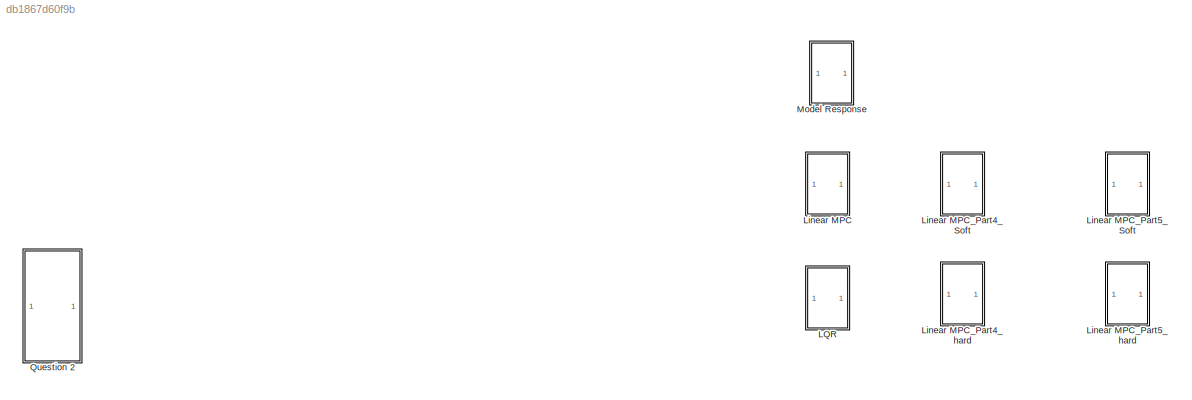
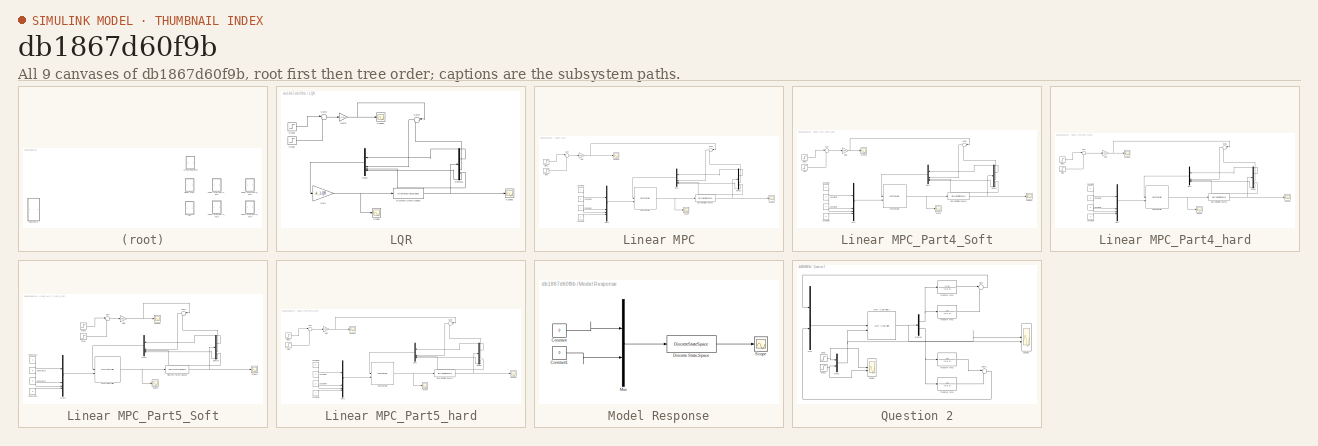
[diagram: thumbnail index - all 9 canvases of the model, root first then tree order]
MODEL slx_db1867d60f9b
KIND model
CONFIG AbsTol = auto
CONFIG EnableMultiTasking = off
CONFIG FixedStep = 0.1
CONFIG MaxStep = auto
CONFIG MinStep = auto
CONFIG RelTol = 1e-3
CONFIG SampleTimeConstraint = Unconstrained
CONFIG SolverName = FixedStepAuto
CONFIG StartTime = 0.0
CONFIG StopTime = 20
BLOCK [SubSystem] LQR
  Commented = on
BLOCK [Demux] LQR/Demux1
BLOCK [DiscreteStateSpace] LQR/Discrete State-Space2
  A = Ad
  B = Bd
  C = Cd
  D = Dd
  InitialCondition = [0,0.1,0,0]
  SampleTime = 0.1
BLOCK [Gain] LQR/Gain
  Gain = -k_LQR
  Multiplication = Matrix(K*u)
BLOCK [Gain] LQR/Gain1
  Gain = 0.05
BLOCK [Mux] LQR/Mux3
  DisplayOption = bar
BLOCK [Scope] LQR/Scope
  Floating = off
  NumInputPorts = 1
  ScopeSpecificationString = Simulink.scopes.TimeScopeBlockCfg('CurrentConfiguration', extmgr.ConfigurationSet(extmgr.Configuration('Core','General UI',true),extmgr.Configuration('Core','Source UI',true),extmgr.Configuration('Sources','WiredSimulink',true),extmgr.Configuration('Visuals','Time Domain',true,'SerializedDisplays',{struct('MinYLimReal','-5.09691','MaxYLimReal','7.30792','YLabelReal','','MinYLimMag','0.00000','MaxY...<+1364ch>
BLOCK [Scope] LQR/Scope3
  Floating = off
  NumInputPorts = 1
  ScopeSpecificationString = Simulink.scopes.TimeScopeBlockCfg('CurrentConfiguration', extmgr.ConfigurationSet(extmgr.Configuration('Core','General UI',true),extmgr.Configuration('Core','Source UI',true),extmgr.Configuration('Sources','WiredSimulink',true,'DataLoggingVariableName','ScopeData1'),extmgr.Configuration('Visuals','Time Domain',true,'SerializedDisplays',{struct('MinYLimReal','-9.49585','MaxYLimReal','12.90608','YLa...<+1653ch>
BLOCK [Scope] LQR/Scope4
  Floating = off
  NumInputPorts = 1
  ScopeSpecificationString = Simulink.scopes.TimeScopeBlockCfg('CurrentConfiguration', extmgr.ConfigurationSet(extmgr.Configuration('Core','General UI',true),extmgr.Configuration('Core','Source UI',true),extmgr.Configuration('Sources','WiredSimulink',true,'DataLoggingVariableName','ScopeData2'),extmgr.Configuration('Visuals','Time Domain',true,'SerializedDisplays',{struct('MinYLimReal','-0.125','MaxYLimReal','1.125','YLabelRe...<+1379ch>  <repeated x5 — deduplicated; at blocks: Scope4, Scope2>
BLOCK [Step] LQR/Step2
  SampleTime = 0
  Time = 5
BLOCK [Step] LQR/Step3
  SampleTime = 0
  Time = 4
BLOCK [Sum] LQR/Sum2
  Inputs = |+-
BLOCK [Sum] LQR/Sum3
  Inputs = |++
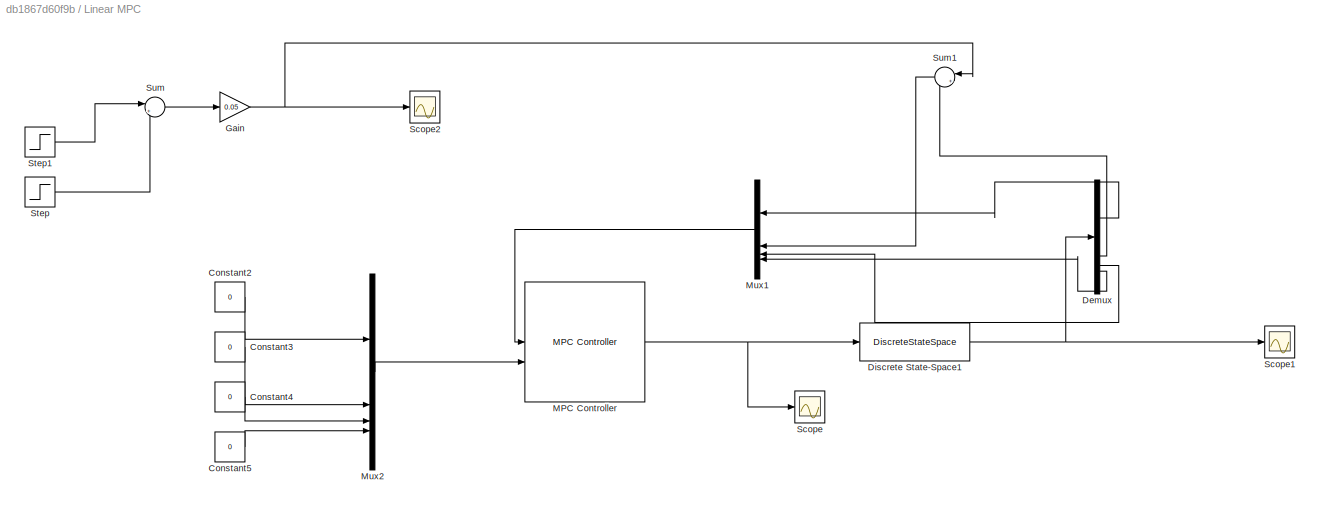
BLOCK [SubSystem] Linear MPC
  Commented = on
BLOCK [Constant] Linear MPC/Constant2
  Value = 0
BLOCK [Constant] Linear MPC/Constant3
  Value = 0
BLOCK [Constant] Linear MPC/Constant4
  Value = 0
BLOCK [Constant] Linear MPC/Constant5
  Value = 0
BLOCK [Demux] Linear MPC/Demux
BLOCK [DiscreteStateSpace] Linear MPC/Discrete State-Space1
  A = Ad
  B = Bd
  C = Cd
  D = Dd
  InitialCondition = [0,0.1,0,0]
  SampleTime = 0.1
BLOCK [Gain] Linear MPC/Gain
  Gain = 0.05
BLOCK [Reference] Linear MPC/MPC Controller  REF=mpclib/MPC Controller  (lib defined in mdl_ae329e0e0455)
  SCDEnableBlockLinearizationSpecification = on
  SourceBlock = mpclib/MPC Controller
  SourceType = MPC
BLOCK [Mux] Linear MPC/Mux1
  DisplayOption = bar
BLOCK [Mux] Linear MPC/Mux2
  DisplayOption = bar
BLOCK [Scope] Linear MPC/Scope
  Floating = off
  NumInputPorts = 1
  ScopeSpecificationString = Simulink.scopes.TimeScopeBlockCfg('CurrentConfiguration', extmgr.ConfigurationSet(extmgr.Configuration('Core','General UI',true),extmgr.Configuration('Core','Source UI',true),extmgr.Configuration('Sources','WiredSimulink',true),extmgr.Configuration('Visuals','Time Domain',true,'SerializedDisplays',{struct('MinYLimReal','-10.59758','MaxYLimReal','18.30706','YLabelReal','','MinYLimMag','0.00000','Ma...<+1433ch>
BLOCK [Scope] Linear MPC/Scope1
  Floating = off
  NumInputPorts = 1
  ScopeSpecificationString = Simulink.scopes.TimeScopeBlockCfg('CurrentConfiguration', extmgr.ConfigurationSet(extmgr.Configuration('Core','General UI',true),extmgr.Configuration('Core','Source UI',true),extmgr.Configuration('Sources','WiredSimulink',true,'DataLoggingVariableName','ScopeData1'),extmgr.Configuration('Visuals','Time Domain',true,'SerializedDisplays',{struct('MinYLimReal','-19.03767','MaxYLimReal','32.38824','YL...<+1564ch>
BLOCK [Scope] Linear MPC/Scope2
  Floating = off
  NumInputPorts = 1
  ScopeSpecificationString = Simulink.scopes.TimeScopeBlockCfg('CurrentConfiguration', extmgr.ConfigurationSet(extmgr.Configuration('Core','General UI',true),extmgr.Configuration('Core','Source UI',true),extmgr.Configuration('Sources','WiredSimulink',true,'DataLoggingVariableName','ScopeData2'),extmgr.Configuration('Visuals','Time Domain',true,'SerializedDisplays',{struct('MinYLimReal','-0.00625','MaxYLimReal','0.05625','YLab...<+1392ch>
BLOCK [Step] Linear MPC/Step
  SampleTime = 0
  Time = 5
BLOCK [Step] Linear MPC/Step1
  SampleTime = 0
  Time = 4
BLOCK [Sum] Linear MPC/Sum
  Inputs = |+-
BLOCK [Sum] Linear MPC/Sum1
  Inputs = |++
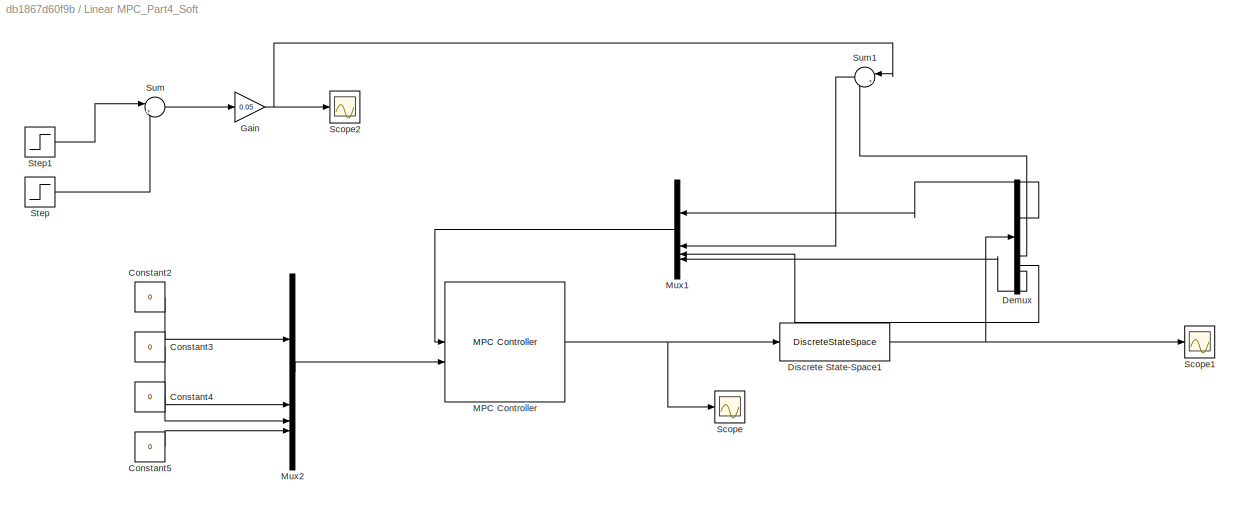
BLOCK [SubSystem] Linear MPC_Part4_Soft
  Commented = on
BLOCK [Constant] Linear MPC_Part4_Soft/Constant2
  Value = 0
BLOCK [Constant] Linear MPC_Part4_Soft/Constant3
  Value = 0
BLOCK [Constant] Linear MPC_Part4_Soft/Constant4
  Value = 0
BLOCK [Constant] Linear MPC_Part4_Soft/Constant5
  Value = 0
BLOCK [Demux] Linear MPC_Part4_Soft/Demux
BLOCK [DiscreteStateSpace] Linear MPC_Part4_Soft/Discrete State-Space1
  A = Ad
  B = Bd
  C = Cd
  D = Dd
  InitialCondition = [0,0.1,0,0]
  SampleTime = 0.1
BLOCK [Gain] Linear MPC_Part4_Soft/Gain
  Gain = 0.05
BLOCK [Reference] Linear MPC_Part4_Soft/MPC Controller  REF=mpclib/MPC Controller  (lib defined in mdl_ae329e0e0455)
  SCDEnableBlockLinearizationSpecification = on
  SourceBlock = mpclib/MPC Controller
  SourceType = MPC
BLOCK [Mux] Linear MPC_Part4_Soft/Mux1
  DisplayOption = bar
BLOCK [Mux] Linear MPC_Part4_Soft/Mux2
  DisplayOption = bar
BLOCK [Scope] Linear MPC_Part4_Soft/Scope
  Floating = off
  NumInputPorts = 1
  ScopeSpecificationString = Simulink.scopes.TimeScopeBlockCfg('CurrentConfiguration', extmgr.ConfigurationSet(extmgr.Configuration('Core','General UI',true),extmgr.Configuration('Core','Source UI',true),extmgr.Configuration('Sources','WiredSimulink',true),extmgr.Configuration('Visuals','Time Domain',true,'SerializedDisplays',{struct('MinYLimReal','-4.06784','MaxYLimReal','9.88026','YLabelReal','','MinYLimMag','0.00000','MaxY...<+1382ch>
BLOCK [Scope] Linear MPC_Part4_Soft/Scope1
  Floating = off
  NumInputPorts = 1
  ScopeSpecificationString = Simulink.scopes.TimeScopeBlockCfg('CurrentConfiguration', extmgr.ConfigurationSet(extmgr.Configuration('Core','General UI',true),extmgr.Configuration('Core','Source UI',true),extmgr.Configuration('Sources','WiredSimulink',true,'DataLoggingVariableName','ScopeData1'),extmgr.Configuration('Visuals','Time Domain',true,'SerializedDisplays',{struct('MinYLimReal','-23.2834','MaxYLimReal','27.85301','YLa...<+1537ch>  <repeated x3 — deduplicated; at blocks: Scope1>
BLOCK [Scope] Linear MPC_Part4_Soft/Scope2
  Floating = off
  NumInputPorts = 1
BLOCK [Step] Linear MPC_Part4_Soft/Step
  SampleTime = 0
  Time = 5
BLOCK [Step] Linear MPC_Part4_Soft/Step1
  SampleTime = 0
  Time = 4
BLOCK [Sum] Linear MPC_Part4_Soft/Sum
  Inputs = |+-
BLOCK [Sum] Linear MPC_Part4_Soft/Sum1
  Inputs = |++
BLOCK [SubSystem] Linear MPC_Part4_hard
  Commented = on
BLOCK [Constant] Linear MPC_Part4_hard/Constant2
  Value = 0
BLOCK [Constant] Linear MPC_Part4_hard/Constant3
  Value = 0
BLOCK [Constant] Linear MPC_Part4_hard/Constant4
  Value = 0
BLOCK [Constant] Linear MPC_Part4_hard/Constant5
  Value = 0
BLOCK [Demux] Linear MPC_Part4_hard/Demux
BLOCK [DiscreteStateSpace] Linear MPC_Part4_hard/Discrete State-Space1
  A = Ad
  B = Bd
  C = Cd
  D = Dd
  InitialCondition = [0,0.1,0,0]
  SampleTime = 0.1
BLOCK [Gain] Linear MPC_Part4_hard/Gain
  Gain = 0.05
BLOCK [Reference] Linear MPC_Part4_hard/MPC Controller  REF=mpclib/MPC Controller  (lib defined in mdl_ae329e0e0455)
  SCDEnableBlockLinearizationSpecification = on
  SourceBlock = mpclib/MPC Controller
  SourceType = MPC
BLOCK [Mux] Linear MPC_Part4_hard/Mux1
  DisplayOption = bar
BLOCK [Mux] Linear MPC_Part4_hard/Mux2
  DisplayOption = bar
BLOCK [Scope] Linear MPC_Part4_hard/Scope
  Floating = off
  NumInputPorts = 1
  ScopeSpecificationString = Simulink.scopes.TimeScopeBlockCfg('CurrentConfiguration', extmgr.ConfigurationSet(extmgr.Configuration('Core','General UI',true),extmgr.Configuration('Core','Source UI',true),extmgr.Configuration('Sources','WiredSimulink',true),extmgr.Configuration('Visuals','Time Domain',true,'SerializedDisplays',{struct('MinYLimReal','-21.62766','MaxYLimReal','11.79837','YLabelReal','','MinYLimMag','0.00000','Ma...<+1390ch>
BLOCK [Scope] Linear MPC_Part4_hard/Scope1
  Floating = off
  NumInputPorts = 1
  ScopeSpecificationString = Simulink.scopes.TimeScopeBlockCfg('CurrentConfiguration', extmgr.ConfigurationSet(extmgr.Configuration('Core','General UI',true),extmgr.Configuration('Core','Source UI',true),extmgr.Configuration('Sources','WiredSimulink',true,'DataLoggingVariableName','ScopeData1'),extmgr.Configuration('Visuals','Time Domain',true,'SerializedDisplays',{struct('MinYLimReal','-38.19769','MaxYLimReal','21.28834','YL...<+1630ch>
BLOCK [Scope] Linear MPC_Part4_hard/Scope2
  Floating = off
  NumInputPorts = 1
BLOCK [Step] Linear MPC_Part4_hard/Step
  SampleTime = 0
  Time = 5
BLOCK [Step] Linear MPC_Part4_hard/Step1
  SampleTime = 0
  Time = 4
BLOCK [Sum] Linear MPC_Part4_hard/Sum
  Inputs = |+-
BLOCK [Sum] Linear MPC_Part4_hard/Sum1
  Inputs = |++
BLOCK [SubSystem] Linear MPC_Part5_Soft
  Commented = on
BLOCK [Constant] Linear MPC_Part5_Soft/Constant2
  Value = 0
BLOCK [Constant] Linear MPC_Part5_Soft/Constant3
  Value = 0
BLOCK [Constant] Linear MPC_Part5_Soft/Constant4
  Value = 0
BLOCK [Constant] Linear MPC_Part5_Soft/Constant5
  Value = 0
BLOCK [Demux] Linear MPC_Part5_Soft/Demux
BLOCK [DiscreteStateSpace] Linear MPC_Part5_Soft/Discrete State-Space1
  A = Ad
  B = Bd
  C = Cd
  D = Dd
  InitialCondition = [0,0.1,0,0]
  SampleTime = 0.1
BLOCK [Gain] Linear MPC_Part5_Soft/Gain
  Gain = 0.05
BLOCK [Reference] Linear MPC_Part5_Soft/MPC Controller  REF=mpclib/MPC Controller  (lib defined in mdl_ae329e0e0455)
  SCDEnableBlockLinearizationSpecification = on
  SourceBlock = mpclib/MPC Controller
  SourceType = MPC
BLOCK [Mux] Linear MPC_Part5_Soft/Mux1
  DisplayOption = bar
BLOCK [Mux] Linear MPC_Part5_Soft/Mux2
  DisplayOption = bar
BLOCK [Scope] Linear MPC_Part5_Soft/Scope
  Floating = off
  NumInputPorts = 1
  ScopeSpecificationString = Simulink.scopes.TimeScopeBlockCfg('CurrentConfiguration', extmgr.ConfigurationSet(extmgr.Configuration('Core','General UI',true),extmgr.Configuration('Core','Source UI',true),extmgr.Configuration('Sources','WiredSimulink',true),extmgr.Configuration('Visuals','Time Domain',true,'SerializedDisplays',{struct('MinYLimReal','-4.08969','MaxYLimReal','9.60061','YLabelReal','','MinYLimMag','0.00000','MaxY...<+1384ch>
BLOCK [Scope] Linear MPC_Part5_Soft/Scope1
  Floating = off
  NumInputPorts = 1
BLOCK [Scope] Linear MPC_Part5_Soft/Scope2
  Floating = off
  NumInputPorts = 1
BLOCK [Step] Linear MPC_Part5_Soft/Step
  SampleTime = 0
  Time = 5
BLOCK [Step] Linear MPC_Part5_Soft/Step1
  SampleTime = 0
  Time = 4
BLOCK [Sum] Linear MPC_Part5_Soft/Sum
  Inputs = |+-
BLOCK [Sum] Linear MPC_Part5_Soft/Sum1
  Inputs = |++
BLOCK [SubSystem] Linear MPC_Part5_hard
  Commented = on
BLOCK [Constant] Linear MPC_Part5_hard/Constant2
  Value = 0
BLOCK [Constant] Linear MPC_Part5_hard/Constant3
  Value = 0
BLOCK [Constant] Linear MPC_Part5_hard/Constant4
  Value = 0
BLOCK [Constant] Linear MPC_Part5_hard/Constant5
  Value = 0
BLOCK [Demux] Linear MPC_Part5_hard/Demux
BLOCK [DiscreteStateSpace] Linear MPC_Part5_hard/Discrete State-Space1
  A = Ad
  B = Bd
  C = Cd
  D = Dd
  InitialCondition = [0,0.1,0,0]
  SampleTime = 0.1
BLOCK [Gain] Linear MPC_Part5_hard/Gain
  Gain = 0.05
BLOCK [Reference] Linear MPC_Part5_hard/MPC Controller  REF=mpclib/MPC Controller  (lib defined in mdl_ae329e0e0455)
  SCDEnableBlockLinearizationSpecification = on
  SourceBlock = mpclib/MPC Controller
  SourceType = MPC
BLOCK [Mux] Linear MPC_Part5_hard/Mux1
  DisplayOption = bar
BLOCK [Mux] Linear MPC_Part5_hard/Mux2
  DisplayOption = bar
BLOCK [Scope] Linear MPC_Part5_hard/Scope
  Floating = off
  NumInputPorts = 1
  ScopeSpecificationString = Simulink.scopes.TimeScopeBlockCfg('CurrentConfiguration', extmgr.ConfigurationSet(extmgr.Configuration('Core','General UI',true),extmgr.Configuration('Core','Source UI',true),extmgr.Configuration('Sources','WiredSimulink',true),extmgr.Configuration('Visuals','Time Domain',true,'SerializedDisplays',{struct('MinYLimReal','-34.14432','MaxYLimReal','13.91444','YLabelReal','','MinYLimMag','0.00000','Ma...<+1390ch>
BLOCK [Scope] Linear MPC_Part5_hard/Scope1
  Floating = off
  NumInputPorts = 1
BLOCK [Scope] Linear MPC_Part5_hard/Scope2
  Floating = off
  NumInputPorts = 1
BLOCK [Step] Linear MPC_Part5_hard/Step
  SampleTime = 0
  Time = 5
BLOCK [Step] Linear MPC_Part5_hard/Step1
  SampleTime = 0
  Time = 4
BLOCK [Sum] Linear MPC_Part5_hard/Sum
  Inputs = |+-
BLOCK [Sum] Linear MPC_Part5_hard/Sum1
  Inputs = |++
BLOCK [SubSystem] Model Response
  Commented = on
BLOCK [Constant] Model Response/Constant
  Value = 0
BLOCK [Constant] Model Response/Constant1
  Value = 0
BLOCK [DiscreteStateSpace] Model Response/Discrete State-Space
  A = Ad
  B = Bd
  C = Cd
  D = Dd
  InitialCondition = [0,0.1,0,0]
  SampleTime = 0.1
BLOCK [Mux] Model Response/Mux
  DisplayOption = bar
  Inputs = 2
BLOCK [Scope] Model Response/Scope
  Floating = off
  NumInputPorts = 1
  ScopeSpecificationString = Simulink.scopes.TimeScopeBlockCfg('CurrentConfiguration', extmgr.ConfigurationSet(extmgr.Configuration('Core','General UI',true),extmgr.Configuration('Core','Source UI',true),extmgr.Configuration('Sources','WiredSimulink',true),extmgr.Configuration('Visuals','Time Domain',true,'SerializedDisplays',{struct('MinYLimReal','-13217947194841555614337859584.00000','MaxYLimReal','1189615247535740203202500...<+1730ch>
BLOCK [SubSystem] Question 2
BLOCK [Demux] Question 2/Demux
  Outputs = 2
BLOCK [Reference] Question 2/MPC Controller1  REF=mpclib/MPC Controller  (lib defined in mdl_ae329e0e0455)
  SCDEnableBlockLinearizationSpecification = on
  SourceBlock = mpclib/MPC Controller
  SourceType = MPC
BLOCK [Mux] Question 2/Mux
  DisplayOption = bar
  Inputs = 2
BLOCK [Mux] Question 2/Mux1
  DisplayOption = bar
  Inputs = 2
BLOCK [Scope] Question 2/Scope
  Floating = off
  NumInputPorts = 2
  ScopeSpecificationString = Simulink.scopes.TimeScopeBlockCfg('CurrentConfiguration', extmgr.ConfigurationSet(extmgr.Configuration('Core','General UI',true),extmgr.Configuration('Core','Source UI',true),extmgr.Configuration('Sources','WiredSimulink',true,'DataLoggingVariableName','ScopeData1'),extmgr.Configuration('Visuals','Time Domain',true,'SerializedDisplays',{struct('MinYLimReal','-26.25','MaxYLimReal','36.25','YLabelRe...<+1359ch>
BLOCK [Scope] Question 2/Scope1
  Floating = off
  NumInputPorts = 2
  ScopeSpecificationString = Simulink.scopes.TimeScopeBlockCfg('CurrentConfiguration', extmgr.ConfigurationSet(extmgr.Configuration('Core','General UI',true),extmgr.Configuration('Core','Source UI',true),extmgr.Configuration('Sources','WiredSimulink',true,'DataLoggingVariableName','ScopeData2'),extmgr.Configuration('Visuals','Time Domain',true,'SerializedDisplays',{struct('MinYLimReal','-26.25','MaxYLimReal','36.25','YLabelRe...<+1428ch>
BLOCK [Step] Question 2/Step
  After = 15
  Before = -10
  SampleTime = 0
  Time = 10
BLOCK [Step] Question 2/Step1
  After = 30
  Before = -20
  SampleTime = 0
  Time = 5
BLOCK [Sum] Question 2/Sum
  Inputs = |++
BLOCK [Sum] Question 2/Sum1
  Inputs = |++
BLOCK [TransferFcn] Question 2/Transfer Fcn1
  Denominator = [0.4 1]
  Numerator = [4]
BLOCK [TransferFcn] Question 2/Transfer Fcn2
  Denominator = [0.6 1]
  Numerator = [2]
BLOCK [TransferFcn] Question 2/Transfer Fcn3
  Denominator = [0.5 1]
  Numerator = [3]
BLOCK [TransferFcn] Question 2/Transfer Fcn4
  Denominator = [0.8 1]
  Numerator = [1.5]
LINE LQR/Demux1:1 -> LQR/Mux3:1
LINE LQR/Demux1:2 -> LQR/Sum3:2
LINE LQR/Demux1:3 -> LQR/Mux3:3
LINE LQR/Demux1:4 -> LQR/Mux3:4
NET LQR/Discrete State-Space2:1 -> LQR/Demux1:1, LQR/Scope3:1
NET LQR/Gain1:1 -> LQR/Scope4:1, LQR/Sum3:1
NET LQR/Gain:1 -> LQR/Discrete State-Space2:1, LQR/Scope:1
LINE LQR/Mux3:1 -> LQR/Gain:1
LINE LQR/Step2:1 -> LQR/Sum2:2
LINE LQR/Step3:1 -> LQR/Sum2:1
LINE LQR/Sum2:1 -> LQR/Gain1:1
LINE LQR/Sum3:1 -> LQR/Mux3:2
LINE Linear MPC/Constant2:1 -> Linear MPC/Mux2:1
LINE Linear MPC/Constant3:1 -> Linear MPC/Mux2:2
LINE Linear MPC/Constant4:1 -> Linear MPC/Mux2:3
LINE Linear MPC/Constant5:1 -> Linear MPC/Mux2:4
LINE Linear MPC/Demux:1 -> Linear MPC/Mux1:1
LINE Linear MPC/Demux:2 -> Linear MPC/Sum1:2
LINE Linear MPC/Demux:3 -> Linear MPC/Mux1:3
LINE Linear MPC/Demux:4 -> Linear MPC/Mux1:4
NET Linear MPC/Discrete State-Space1:1 -> Linear MPC/Demux:1, Linear MPC/Scope1:1
NET Linear MPC/Gain:1 -> Linear MPC/Scope2:1, Linear MPC/Sum1:1
NET Linear MPC/MPC Controller:1 -> Linear MPC/Discrete State-Space1:1, Linear MPC/Scope:1
LINE Linear MPC/Mux1:1 -> Linear MPC/MPC Controller:1
LINE Linear MPC/Mux2:1 -> Linear MPC/MPC Controller:2
LINE Linear MPC/Step1:1 -> Linear MPC/Sum:1
LINE Linear MPC/Step:1 -> Linear MPC/Sum:2
LINE Linear MPC/Sum1:1 -> Linear MPC/Mux1:2
LINE Linear MPC/Sum:1 -> Linear MPC/Gain:1
LINE Linear MPC_Part4_Soft/Constant2:1 -> Linear MPC_Part4_Soft/Mux2:1
LINE Linear MPC_Part4_Soft/Constant3:1 -> Linear MPC_Part4_Soft/Mux2:2
LINE Linear MPC_Part4_Soft/Constant4:1 -> Linear MPC_Part4_Soft/Mux2:3
LINE Linear MPC_Part4_Soft/Constant5:1 -> Linear MPC_Part4_Soft/Mux2:4
LINE Linear MPC_Part4_Soft/Demux:1 -> Linear MPC_Part4_Soft/Mux1:1
LINE Linear MPC_Part4_Soft/Demux:2 -> Linear MPC_Part4_Soft/Sum1:2
LINE Linear MPC_Part4_Soft/Demux:3 -> Linear MPC_Part4_Soft/Mux1:3
LINE Linear MPC_Part4_Soft/Demux:4 -> Linear MPC_Part4_Soft/Mux1:4
NET Linear MPC_Part4_Soft/Discrete State-Space1:1 -> Linear MPC_Part4_Soft/Demux:1, Linear MPC_Part4_Soft/Scope1:1
NET Linear MPC_Part4_Soft/Gain:1 -> Linear MPC_Part4_Soft/Scope2:1, Linear MPC_Part4_Soft/Sum1:1
NET Linear MPC_Part4_Soft/MPC Controller:1 -> Linear MPC_Part4_Soft/Discrete State-Space1:1, Linear MPC_Part4_Soft/Scope:1
LINE Linear MPC_Part4_Soft/Mux1:1 -> Linear MPC_Part4_Soft/MPC Controller:1
LINE Linear MPC_Part4_Soft/Mux2:1 -> Linear MPC_Part4_Soft/MPC Controller:2
LINE Linear MPC_Part4_Soft/Step1:1 -> Linear MPC_Part4_Soft/Sum:1
LINE Linear MPC_Part4_Soft/Step:1 -> Linear MPC_Part4_Soft/Sum:2
LINE Linear MPC_Part4_Soft/Sum1:1 -> Linear MPC_Part4_Soft/Mux1:2
LINE Linear MPC_Part4_Soft/Sum:1 -> Linear MPC_Part4_Soft/Gain:1
LINE Linear MPC_Part4_hard/Constant2:1 -> Linear MPC_Part4_hard/Mux2:1
LINE Linear MPC_Part4_hard/Constant3:1 -> Linear MPC_Part4_hard/Mux2:2
LINE Linear MPC_Part4_hard/Constant4:1 -> Linear MPC_Part4_hard/Mux2:3
LINE Linear MPC_Part4_hard/Constant5:1 -> Linear MPC_Part4_hard/Mux2:4
LINE Linear MPC_Part4_hard/Demux:1 -> Linear MPC_Part4_hard/Mux1:1
LINE Linear MPC_Part4_hard/Demux:2 -> Linear MPC_Part4_hard/Sum1:2
LINE Linear MPC_Part4_hard/Demux:3 -> Linear MPC_Part4_hard/Mux1:3
LINE Linear MPC_Part4_hard/Demux:4 -> Linear MPC_Part4_hard/Mux1:4
NET Linear MPC_Part4_hard/Discrete State-Space1:1 -> Linear MPC_Part4_hard/Demux:1, Linear MPC_Part4_hard/Scope1:1
NET Linear MPC_Part4_hard/Gain:1 -> Linear MPC_Part4_hard/Scope2:1, Linear MPC_Part4_hard/Sum1:1
NET Linear MPC_Part4_hard/MPC Controller:1 -> Linear MPC_Part4_hard/Discrete State-Space1:1, Linear MPC_Part4_hard/Scope:1
LINE Linear MPC_Part4_hard/Mux1:1 -> Linear MPC_Part4_hard/MPC Controller:1
LINE Linear MPC_Part4_hard/Mux2:1 -> Linear MPC_Part4_hard/MPC Controller:2
LINE Linear MPC_Part4_hard/Step1:1 -> Linear MPC_Part4_hard/Sum:1
LINE Linear MPC_Part4_hard/Step:1 -> Linear MPC_Part4_hard/Sum:2
LINE Linear MPC_Part4_hard/Sum1:1 -> Linear MPC_Part4_hard/Mux1:2
LINE Linear MPC_Part4_hard/Sum:1 -> Linear MPC_Part4_hard/Gain:1
LINE Linear MPC_Part5_Soft/Constant2:1 -> Linear MPC_Part5_Soft/Mux2:1
LINE Linear MPC_Part5_Soft/Constant3:1 -> Linear MPC_Part5_Soft/Mux2:2
LINE Linear MPC_Part5_Soft/Constant4:1 -> Linear MPC_Part5_Soft/Mux2:3
LINE Linear MPC_Part5_Soft/Constant5:1 -> Linear MPC_Part5_Soft/Mux2:4
LINE Linear MPC_Part5_Soft/Demux:1 -> Linear MPC_Part5_Soft/Mux1:1
LINE Linear MPC_Part5_Soft/Demux:2 -> Linear MPC_Part5_Soft/Sum1:2
LINE Linear MPC_Part5_Soft/Demux:3 -> Linear MPC_Part5_Soft/Mux1:3
LINE Linear MPC_Part5_Soft/Demux:4 -> Linear MPC_Part5_Soft/Mux1:4
NET Linear MPC_Part5_Soft/Discrete State-Space1:1 -> Linear MPC_Part5_Soft/Demux:1, Linear MPC_Part5_Soft/Scope1:1
NET Linear MPC_Part5_Soft/Gain:1 -> Linear MPC_Part5_Soft/Scope2:1, Linear MPC_Part5_Soft/Sum1:1
NET Linear MPC_Part5_Soft/MPC Controller:1 -> Linear MPC_Part5_Soft/Discrete State-Space1:1, Linear MPC_Part5_Soft/Scope:1
LINE Linear MPC_Part5_Soft/Mux1:1 -> Linear MPC_Part5_Soft/MPC Controller:1
LINE Linear MPC_Part5_Soft/Mux2:1 -> Linear MPC_Part5_Soft/MPC Controller:2
LINE Linear MPC_Part5_Soft/Step1:1 -> Linear MPC_Part5_Soft/Sum:1
LINE Linear MPC_Part5_Soft/Step:1 -> Linear MPC_Part5_Soft/Sum:2
LINE Linear MPC_Part5_Soft/Sum1:1 -> Linear MPC_Part5_Soft/Mux1:2
LINE Linear MPC_Part5_Soft/Sum:1 -> Linear MPC_Part5_Soft/Gain:1
LINE Linear MPC_Part5_hard/Constant2:1 -> Linear MPC_Part5_hard/Mux2:1
LINE Linear MPC_Part5_hard/Constant3:1 -> Linear MPC_Part5_hard/Mux2:2
LINE Linear MPC_Part5_hard/Constant4:1 -> Linear MPC_Part5_hard/Mux2:3
LINE Linear MPC_Part5_hard/Constant5:1 -> Linear MPC_Part5_hard/Mux2:4
LINE Linear MPC_Part5_hard/Demux:1 -> Linear MPC_Part5_hard/Mux1:1
LINE Linear MPC_Part5_hard/Demux:2 -> Linear MPC_Part5_hard/Sum1:2
LINE Linear MPC_Part5_hard/Demux:3 -> Linear MPC_Part5_hard/Mux1:3
LINE Linear MPC_Part5_hard/Demux:4 -> Linear MPC_Part5_hard/Mux1:4
NET Linear MPC_Part5_hard/Discrete State-Space1:1 -> Linear MPC_Part5_hard/Demux:1, Linear MPC_Part5_hard/Scope1:1
NET Linear MPC_Part5_hard/Gain:1 -> Linear MPC_Part5_hard/Scope2:1, Linear MPC_Part5_hard/Sum1:1
NET Linear MPC_Part5_hard/MPC Controller:1 -> Linear MPC_Part5_hard/Discrete State-Space1:1, Linear MPC_Part5_hard/Scope:1
LINE Linear MPC_Part5_hard/Mux1:1 -> Linear MPC_Part5_hard/MPC Controller:1
LINE Linear MPC_Part5_hard/Mux2:1 -> Linear MPC_Part5_hard/MPC Controller:2
LINE Linear MPC_Part5_hard/Step1:1 -> Linear MPC_Part5_hard/Sum:1
LINE Linear MPC_Part5_hard/Step:1 -> Linear MPC_Part5_hard/Sum:2
LINE Linear MPC_Part5_hard/Sum1:1 -> Linear MPC_Part5_hard/Mux1:2
LINE Linear MPC_Part5_hard/Sum:1 -> Linear MPC_Part5_hard/Gain:1
LINE Model Response/Constant1:1 -> Model Response/Mux:2
LINE Model Response/Constant:1 -> Model Response/Mux:1
LINE Model Response/Discrete State-Space:1 -> Model Response/Scope:1
LINE Model Response/Mux:1 -> Model Response/Discrete State-Space:1
NET Question 2/Demux:1 -> Question 2/Transfer Fcn1:1, Question 2/Transfer Fcn4:1
NET Question 2/Demux:2 -> Question 2/Transfer Fcn2:1, Question 2/Transfer Fcn3:1
NET Question 2/MPC Controller1:1 -> Question 2/Demux:1, Question 2/Scope1:1
NET Question 2/Mux1:1 -> Question 2/MPC Controller1:2, Question 2/Scope1:2
LINE Question 2/Mux:1 -> Question 2/MPC Controller1:1
NET Question 2/Step1:1 -> Question 2/Mux1:2, Question 2/Scope:2
NET Question 2/Step:1 -> Question 2/Mux1:1, Question 2/Scope:1
LINE Question 2/Sum1:1 -> Question 2/Mux:2
LINE Question 2/Sum:1 -> Question 2/Mux:1
LINE Question 2/Transfer Fcn1:1 -> Question 2/Sum:2
LINE Question 2/Transfer Fcn2:1 -> Question 2/Sum1:1
LINE Question 2/Transfer Fcn3:1 -> Question 2/Sum1:2
LINE Question 2/Transfer Fcn4:1 -> Question 2/Sum:1
note: NET lines group one-source signal fan-out (src -> all destinations, sorted); 1:1 wires keep LINE
